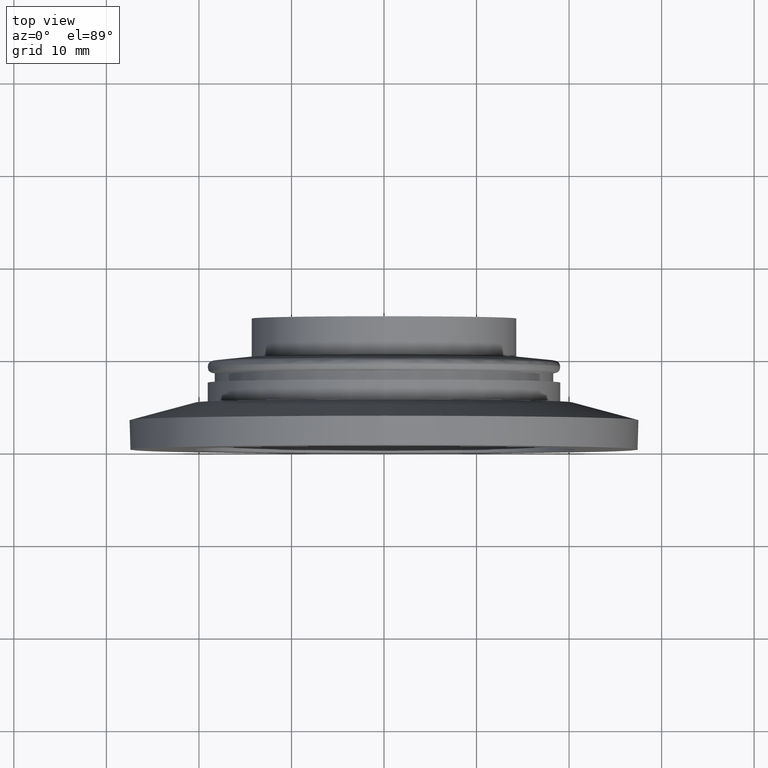
[diagram: clean part render]
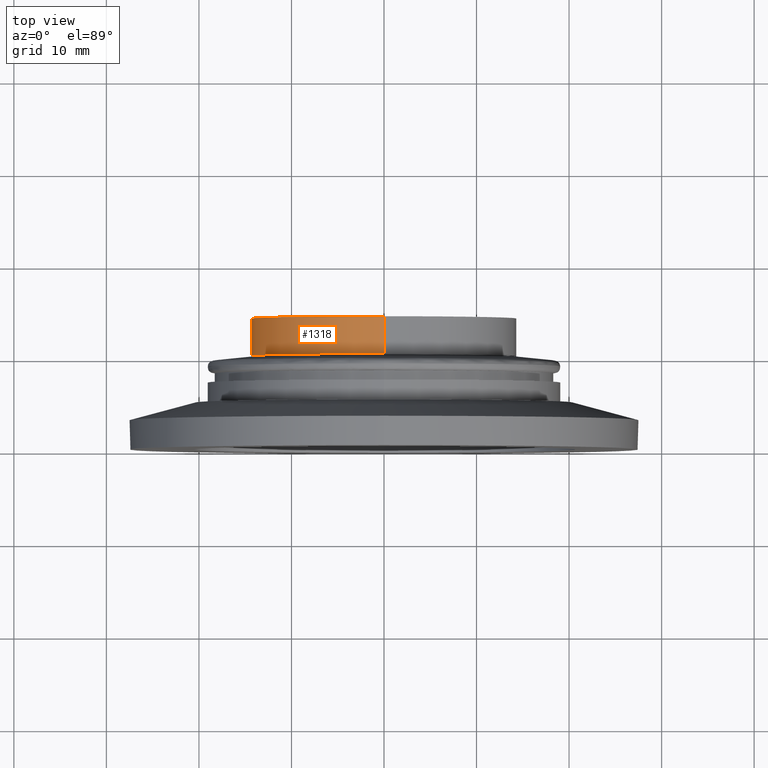
[diagram: same view with one face highlighted and labeled with its STEP entity id]
A machine part, top view. The second image highlights one B-rep face of the part: STEP entity #1318.
In plain terms, the highlighted cylindrical surface (partial cylindrical patch) has radius 14.2875 mm, axis along (-0, -1, -0).
Its self-contained STEP definition (entity closure, byte-faithful):
#9 = CARTESIAN_POINT ( 'NONE',  ( 0.0000000000000000000, 0.3324251999999999800, 0.0000000000000000000 ) ) ;
#10 = DIRECTION ( 'NONE',  ( -0.0000000000000000000, -1.000000000000000000, -0.0000000000000000000 ) ) ;
#15 = DIRECTION ( 'NONE',  ( 0.0000000000000000000, 0.0000000000000000000, -1.000000000000000000 ) ) ;
#102 = DIRECTION ( 'NONE',  ( 0.0000000000000000000, 0.0000000000000000000, -1.000000000000000000 ) ) ;
#113 = DIRECTION ( 'NONE',  ( 0.0000000000000000000, 1.000000000000000000, 0.0000000000000000000 ) ) ;
#152 = CARTESIAN_POINT ( 'NONE',  ( 0.0000000000000000000, 0.5574252000000000700, -0.5625000000000000000 ) ) ;
#162 = CARTESIAN_POINT ( 'NONE',  ( 0.0000000000000000000, 0.3983896410467271900, 0.0000000000000000000 ) ) ;
#165 = CARTESIAN_POINT ( 'NONE',  ( 0.0000000000000000000, 0.3983896410467271900, -0.5625000000000000000 ) ) ;
#169 = CARTESIAN_POINT ( 'NONE',  ( 6.888638245203861900E-017, 0.3983896410467271900, 0.5625000000000000000 ) ) ;
#175 = DIRECTION ( 'NONE',  ( 0.0000000000000000000, 0.0000000000000000000, -1.000000000000000000 ) ) ;
#179 = CARTESIAN_POINT ( 'NONE',  ( 6.888638245203861900E-017, 0.5574252000000000700, 0.5625000000000000000 ) ) ;
#181 = DIRECTION ( 'NONE',  ( -0.0000000000000000000, -1.000000000000000000, -0.0000000000000000000 ) ) ;
#185 = CARTESIAN_POINT ( 'NONE',  ( 0.0000000000000000000, 0.5574252000000000700, 0.0000000000000000000 ) ) ;
#359 = AXIS2_PLACEMENT_3D ( 'NONE', #162, #113, #102 ) ;
#360 = AXIS2_PLACEMENT_3D ( 'NONE', #185, #181, #175 ) ;
#424 = EDGE_CURVE ( 'NONE', #972, #1027, #787, .T. ) ;
#426 = EDGE_CURVE ( 'NONE', #1039, #1028, #783, .T. ) ;
#464 = AXIS2_PLACEMENT_3D ( 'NONE', #9, #10, #15 ) ;
#534 = EDGE_CURVE ( 'NONE', #972, #1039, #751, .T. ) ;
#535 = EDGE_CURVE ( 'NONE', #1028, #1027, #749, .T. ) ;
#678 = CYLINDRICAL_SURFACE ( 'NONE', #464, 0.5625000000000000000 ) ;
#687 = FACE_OUTER_BOUND ( 'NONE', #994, .T. ) ;
#749 = CIRCLE ( 'NONE', #359, 0.5625000000000000000 ) ;
#751 = CIRCLE ( 'NONE', #360, 0.5625000000000000000 ) ;
#777 = VECTOR ( 'NONE', #1120, 39.37007874015748100 ) ;
#781 = VECTOR ( 'NONE', #1137, 39.37007874015748100 ) ;
#783 = LINE ( 'NONE', #1130, #777 ) ;
#787 = LINE ( 'NONE', #1129, #781 ) ;
#897 = ORIENTED_EDGE ( 'NONE', *, *, #424, .F. ) ;
#898 = ORIENTED_EDGE ( 'NONE', *, *, #534, .T. ) ;
#899 = ORIENTED_EDGE ( 'NONE', *, *, #426, .T. ) ;
#900 = ORIENTED_EDGE ( 'NONE', *, *, #535, .T. ) ;
#972 = VERTEX_POINT ( 'NONE', #179 ) ;
#994 = EDGE_LOOP ( 'NONE', ( #897, #898, #899, #900 ) ) ;
#1027 = VERTEX_POINT ( 'NONE', #169 ) ;
#1028 = VERTEX_POINT ( 'NONE', #165 ) ;
#1039 = VERTEX_POINT ( 'NONE', #152 ) ;
#1120 = DIRECTION ( 'NONE',  ( -0.0000000000000000000, -1.000000000000000000, -0.0000000000000000000 ) ) ;
#1129 = CARTESIAN_POINT ( 'NONE',  ( 6.888638245203861900E-017, 0.3324251999999999800, 0.5625000000000000000 ) ) ;
#1130 = CARTESIAN_POINT ( 'NONE',  ( 0.0000000000000000000, 0.3324251999999999800, -0.5625000000000000000 ) ) ;
#1137 = DIRECTION ( 'NONE',  ( -0.0000000000000000000, -1.000000000000000000, -0.0000000000000000000 ) ) ;
#1318 = ADVANCED_FACE ( 'NONE', ( #687 ), #678, .T. ) ;